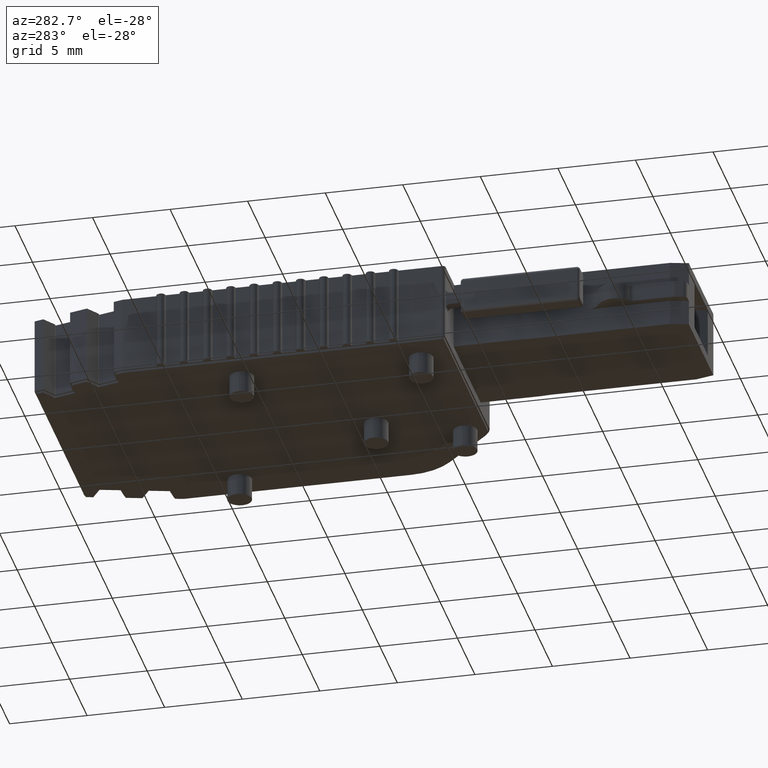
[diagram: clean part render]
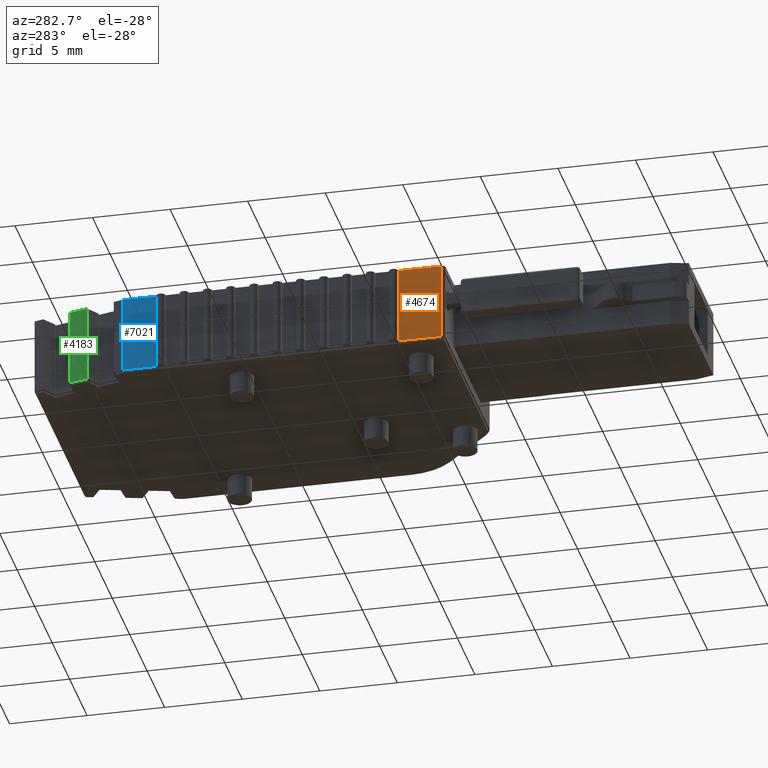
[diagram: same view with three faces highlighted in distinct colors, each labeled with its STEP entity id]
A machine part, auxiliary view with three faces highlighted in distinct colors.
Their STEP definitions:

[orange] entity #4674 — the highlighted planar face has unit normal (1, -0, 0).
#61 = DIRECTION ( 'NONE',  ( 1.000000000000000000, -0.0000000000000000000, 0.0000000000000000000 ) ) ;
#329 = CARTESIAN_POINT ( 'NONE',  ( -25.55885269162516600, 10.78962054733867700, -7.844148433129063000 ) ) ;
#457 = ORIENTED_EDGE ( 'NONE', *, *, #2196, .F. ) ;
#607 = ORIENTED_EDGE ( 'NONE', *, *, #2350, .F. ) ;
#655 = DIRECTION ( 'NONE',  ( 0.0000000000000000000, -1.000000000000000000, -0.0000000000000000000 ) ) ;
#779 = VERTEX_POINT ( 'NONE', #3305 ) ;
#866 = PLANE ( 'NONE',  #934 ) ;
#878 = ORIENTED_EDGE ( 'NONE', *, *, #2963, .F. ) ;
#934 = AXIS2_PLACEMENT_3D ( 'NONE', #4967, #61, #3663 ) ;
#1096 = CARTESIAN_POINT ( 'NONE',  ( -25.55885269162516600, 10.78962054733867700, -2.844148433129063400 ) ) ;
#1099 = CARTESIAN_POINT ( 'NONE',  ( -25.55885269162516600, 13.89610769794062300, -2.844148433129063000 ) ) ;
#1436 = CARTESIAN_POINT ( 'NONE',  ( -25.55885269162516600, 7.989620547339066000, -2.844148433129063400 ) ) ;
#1602 = LINE ( 'NONE', #2761, #7098 ) ;
#1899 = LINE ( 'NONE', #1099, #8793 ) ;
#1918 = LINE ( 'NONE', #8136, #5912 ) ;
#2196 = EDGE_CURVE ( 'NONE', #6038, #779, #5590, .T. ) ;
#2350 = EDGE_CURVE ( 'NONE', #7691, #2820, #1918, .T. ) ;
#2392 = DIRECTION ( 'NONE',  ( 0.0000000000000000000, 1.000000000000000000, 0.0000000000000000000 ) ) ;
#2761 = CARTESIAN_POINT ( 'NONE',  ( -25.55885269162516600, 34.10922673933396300, 2.155851566870937000 ) ) ;
#2820 = VERTEX_POINT ( 'NONE', #1436 ) ;
#2963 = EDGE_CURVE ( 'NONE', #2820, #6038, #1899, .T. ) ;
#3305 = CARTESIAN_POINT ( 'NONE',  ( -25.55885269162516600, 10.78962054733867700, 2.155851566870937500 ) ) ;
#3663 = DIRECTION ( 'NONE',  ( 0.0000000000000000000, 0.0000000000000000000, -1.000000000000000000 ) ) ;
#4311 = FACE_OUTER_BOUND ( 'NONE', #7156, .T. ) ;
#4450 = DIRECTION ( 'NONE',  ( -0.0000000000000000000, -0.0000000000000000000, 1.000000000000000000 ) ) ;
#4451 = EDGE_CURVE ( 'NONE', #779, #7691, #1602, .T. ) ;
#4674 = ADVANCED_FACE ( 'NONE', ( #4311 ), #866, .F. ) ;
#4967 = CARTESIAN_POINT ( 'NONE',  ( -25.55885269162516600, 7.789620547339060500, -7.844148433129063000 ) ) ;
#5590 = LINE ( 'NONE', #329, #6550 ) ;
#5912 = VECTOR ( 'NONE', #7438, 1000.000000000000000 ) ;
#6038 = VERTEX_POINT ( 'NONE', #1096 ) ;
#6332 = ORIENTED_EDGE ( 'NONE', *, *, #4451, .F. ) ;
#6550 = VECTOR ( 'NONE', #4450, 1000.000000000000000 ) ;
#7098 = VECTOR ( 'NONE', #655, 1000.000000000000000 ) ;
#7156 = EDGE_LOOP ( 'NONE', ( #878, #607, #6332, #457 ) ) ;
#7438 = DIRECTION ( 'NONE',  ( 0.0000000000000000000, 0.0000000000000000000, -1.000000000000000000 ) ) ;
#7691 = VERTEX_POINT ( 'NONE', #7878 ) ;
#7878 = CARTESIAN_POINT ( 'NONE',  ( -25.55885269162516600, 7.989620547339066000, 2.155851566870937500 ) ) ;
#8136 = CARTESIAN_POINT ( 'NONE',  ( -25.55885269162516600, 7.989620547339066000, -7.844148433129063000 ) ) ;
#8793 = VECTOR ( 'NONE', #2392, 1000.000000000000000 ) ;

[blue] entity #7021 — the highlighted planar face has unit normal (1, -0, 0).
#45 = VERTEX_POINT ( 'NONE', #82 ) ;
#82 = CARTESIAN_POINT ( 'NONE',  ( -25.55885269162516600, 28.57840653104310000, -2.844148433129063000 ) ) ;
#209 = CARTESIAN_POINT ( 'NONE',  ( -25.55885269162516600, 26.38962052835781300, -7.844148433129063000 ) ) ;
#278 = DIRECTION ( 'NONE',  ( 0.0000000000000000000, 0.0000000000000000000, -1.000000000000000000 ) ) ;
#397 = EDGE_CURVE ( 'NONE', #7570, #7348, #7057, .T. ) ;
#1025 = DIRECTION ( 'NONE',  ( -0.0000000000000000000, -0.0000000000000000000, 1.000000000000000000 ) ) ;
#1199 = EDGE_CURVE ( 'NONE', #45, #7570, #4882, .T. ) ;
#1247 = CARTESIAN_POINT ( 'NONE',  ( -25.55885269162516600, 13.89610769794062300, -2.844148433129063000 ) ) ;
#1402 = ORIENTED_EDGE ( 'NONE', *, *, #397, .F. ) ;
#1845 = VECTOR ( 'NONE', #7445, 1000.000000000000000 ) ;
#1969 = EDGE_CURVE ( 'NONE', #7237, #45, #6177, .T. ) ;
#2051 = CARTESIAN_POINT ( 'NONE',  ( -25.55885269162516600, 26.38962052835781700, -2.844148433129063400 ) ) ;
#2152 = CARTESIAN_POINT ( 'NONE',  ( -25.55885269162516600, 34.10922673933396300, 2.155851566870937000 ) ) ;
#2233 = CARTESIAN_POINT ( 'NONE',  ( -25.55885269162516600, 26.38962052835781700, 2.155851566870937500 ) ) ;
#2766 = FACE_OUTER_BOUND ( 'NONE', #4434, .T. ) ;
#2783 = AXIS2_PLACEMENT_3D ( 'NONE', #7669, #4181, #6208 ) ;
#3606 = CARTESIAN_POINT ( 'NONE',  ( -25.55885269162516600, 28.57840653104310700, 2.155851566870937500 ) ) ;
#3795 = ORIENTED_EDGE ( 'NONE', *, *, #6555, .F. ) ;
#4181 = DIRECTION ( 'NONE',  ( 1.000000000000000000, -0.0000000000000000000, 0.0000000000000000000 ) ) ;
#4434 = EDGE_LOOP ( 'NONE', ( #1402, #5698, #8292, #3795 ) ) ;
#4882 = LINE ( 'NONE', #5192, #7342 ) ;
#5047 = LINE ( 'NONE', #209, #5692 ) ;
#5192 = CARTESIAN_POINT ( 'NONE',  ( -25.55885269162516600, 28.57840653104310700, -7.844148433129063000 ) ) ;
#5240 = VECTOR ( 'NONE', #8344, 1000.000000000000000 ) ;
#5692 = VECTOR ( 'NONE', #278, 1000.000000000000000 ) ;
#5698 = ORIENTED_EDGE ( 'NONE', *, *, #1199, .F. ) ;
#6177 = LINE ( 'NONE', #1247, #1845 ) ;
#6208 = DIRECTION ( 'NONE',  ( 0.0000000000000000000, 0.0000000000000000000, -1.000000000000000000 ) ) ;
#6555 = EDGE_CURVE ( 'NONE', #7348, #7237, #5047, .T. ) ;
#7021 = ADVANCED_FACE ( 'NONE', ( #2766 ), #8291, .F. ) ;
#7057 = LINE ( 'NONE', #2152, #5240 ) ;
#7237 = VERTEX_POINT ( 'NONE', #2051 ) ;
#7342 = VECTOR ( 'NONE', #1025, 1000.000000000000000 ) ;
#7348 = VERTEX_POINT ( 'NONE', #2233 ) ;
#7445 = DIRECTION ( 'NONE',  ( 0.0000000000000000000, 1.000000000000000000, 0.0000000000000000000 ) ) ;
#7570 = VERTEX_POINT ( 'NONE', #3606 ) ;
#7669 = CARTESIAN_POINT ( 'NONE',  ( -25.55885269162516600, 7.789620547339060500, -7.844148433129063000 ) ) ;
#8291 = PLANE ( 'NONE',  #2783 ) ;
#8292 = ORIENTED_EDGE ( 'NONE', *, *, #1969, .F. ) ;
#8344 = DIRECTION ( 'NONE',  ( 0.0000000000000000000, -1.000000000000000000, -0.0000000000000000000 ) ) ;

[green] entity #4183 — the highlighted planar face has unit normal (0.9659, -0.2588, 0).
#154 = CARTESIAN_POINT ( 'NONE',  ( -24.90603837128657700, 31.01470748468988200, -7.844148433129063000 ) ) ;
#213 = DIRECTION ( 'NONE',  ( 0.9659258262890890700, -0.2588190451024435200, 0.0000000000000000000 ) ) ;
#225 = EDGE_CURVE ( 'NONE', #6818, #1859, #4579, .T. ) ;
#1098 = CARTESIAN_POINT ( 'NONE',  ( -24.59569471287592500, 32.17292578568559200, -2.844148433129061600 ) ) ;
#1442 = CARTESIAN_POINT ( 'NONE',  ( -24.59569471287592500, 32.17292578568559200, 2.155851566870937000 ) ) ;
#1859 = VERTEX_POINT ( 'NONE', #1098 ) ;
#1921 = CARTESIAN_POINT ( 'NONE',  ( -24.90603837128657700, 31.01470748468988600, -2.844148433129063000 ) ) ;
#1946 = CARTESIAN_POINT ( 'NONE',  ( -24.90603837128657700, 31.01470748468988200, -7.844148433129063000 ) ) ;
#1997 = CARTESIAN_POINT ( 'NONE',  ( -24.59569471287592500, 32.17292578568559200, 2.155851566870937500 ) ) ;
#2150 = ORIENTED_EDGE ( 'NONE', *, *, #2363, .T. ) ;
#2363 = EDGE_CURVE ( 'NONE', #6818, #4937, #5375, .T. ) ;
#2408 = EDGE_CURVE ( 'NONE', #5123, #1859, #4722, .T. ) ;
#2873 = LINE ( 'NONE', #1442, #7369 ) ;
#3022 = CARTESIAN_POINT ( 'NONE',  ( -24.59569471287592500, 32.17292578568559200, -7.844148433129063000 ) ) ;
#3349 = DIRECTION ( 'NONE',  ( 0.0000000000000000000, 0.0000000000000000000, 1.000000000000000000 ) ) ;
#3801 = PLANE ( 'NONE',  #7281 ) ;
#3906 = CARTESIAN_POINT ( 'NONE',  ( -24.90603837128657700, 31.01470748468988200, 2.155851566870937500 ) ) ;
#4072 = VECTOR ( 'NONE', #3349, 1000.000000000000000 ) ;
#4183 = ADVANCED_FACE ( 'NONE', ( #4953 ), #3801, .F. ) ;
#4336 = EDGE_LOOP ( 'NONE', ( #8341, #8384, #4583, #2150 ) ) ;
#4579 = LINE ( 'NONE', #7518, #5115 ) ;
#4583 = ORIENTED_EDGE ( 'NONE', *, *, #225, .F. ) ;
#4722 = LINE ( 'NONE', #3022, #5690 ) ;
#4937 = VERTEX_POINT ( 'NONE', #3906 ) ;
#4953 = FACE_OUTER_BOUND ( 'NONE', #4336, .T. ) ;
#5034 = DIRECTION ( 'NONE',  ( 0.2588190451024434700, 0.9659258262890889600, 0.0000000000000000000 ) ) ;
#5115 = VECTOR ( 'NONE', #7547, 1000.000000000000100 ) ;
#5123 = VERTEX_POINT ( 'NONE', #1997 ) ;
#5375 = LINE ( 'NONE', #1946, #4072 ) ;
#5690 = VECTOR ( 'NONE', #8451, 1000.000000000000000 ) ;
#6165 = DIRECTION ( 'NONE',  ( -0.2588190451024449700, -0.9659258262890886300, 0.0000000000000000000 ) ) ;
#6818 = VERTEX_POINT ( 'NONE', #1921 ) ;
#7281 = AXIS2_PLACEMENT_3D ( 'NONE', #154, #213, #5034 ) ;
#7286 = EDGE_CURVE ( 'NONE', #5123, #4937, #2873, .T. ) ;
#7369 = VECTOR ( 'NONE', #6165, 1000.000000000000100 ) ;
#7518 = CARTESIAN_POINT ( 'NONE',  ( -24.90603837128657700, 31.01470748468988200, -2.844148433129061600 ) ) ;
#7547 = DIRECTION ( 'NONE',  ( 0.2588190451024434700, 0.9659258262890889600, 0.0000000000000000000 ) ) ;
#8341 = ORIENTED_EDGE ( 'NONE', *, *, #7286, .F. ) ;
#8384 = ORIENTED_EDGE ( 'NONE', *, *, #2408, .T. ) ;
#8451 = DIRECTION ( 'NONE',  ( 0.0000000000000000000, -0.0000000000000000000, -1.000000000000000000 ) ) ;